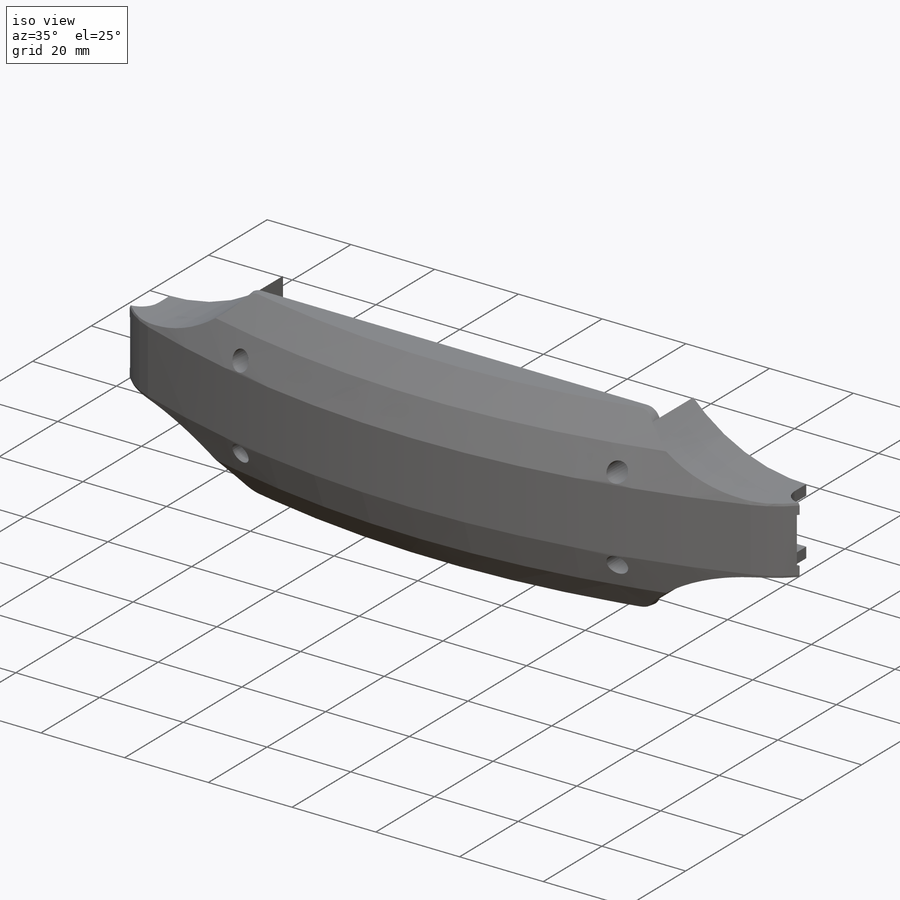
[diagram: iso view]
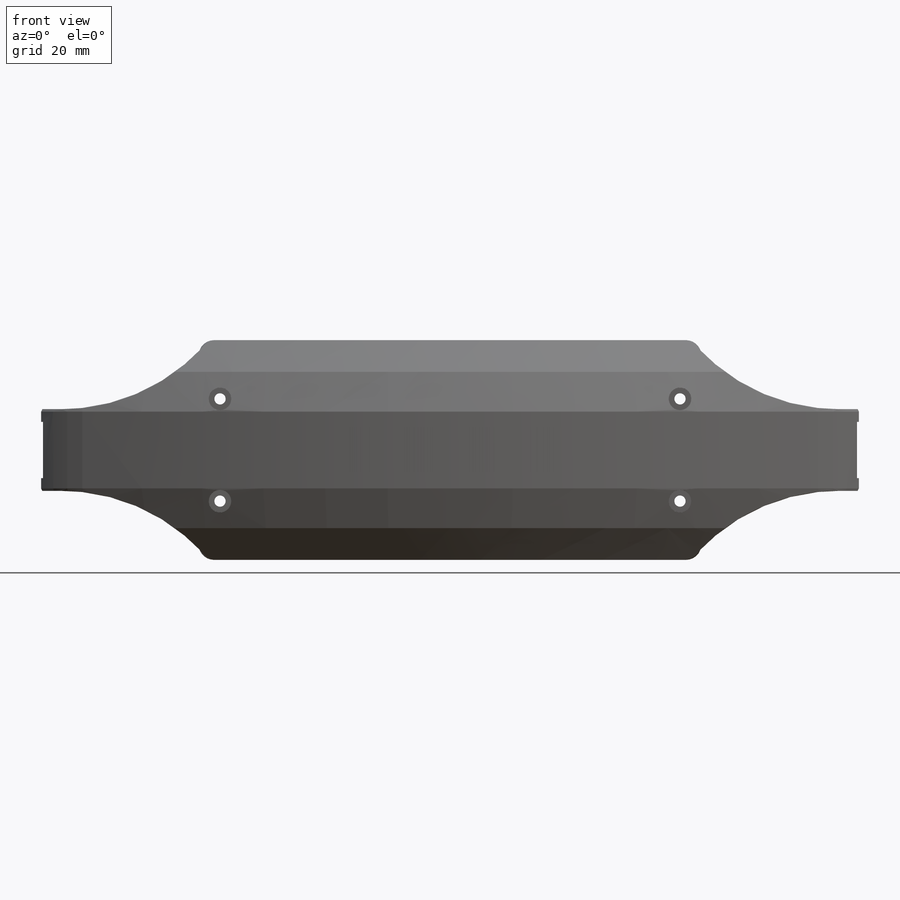
[diagram: front view]
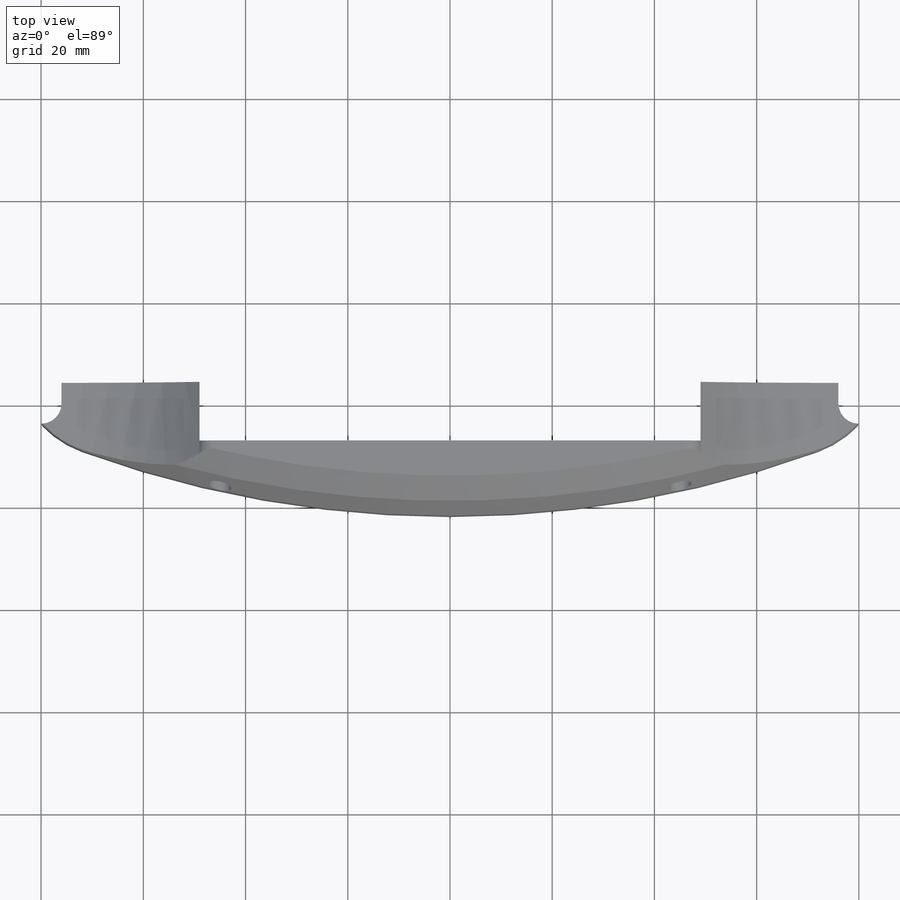
[diagram: top view]
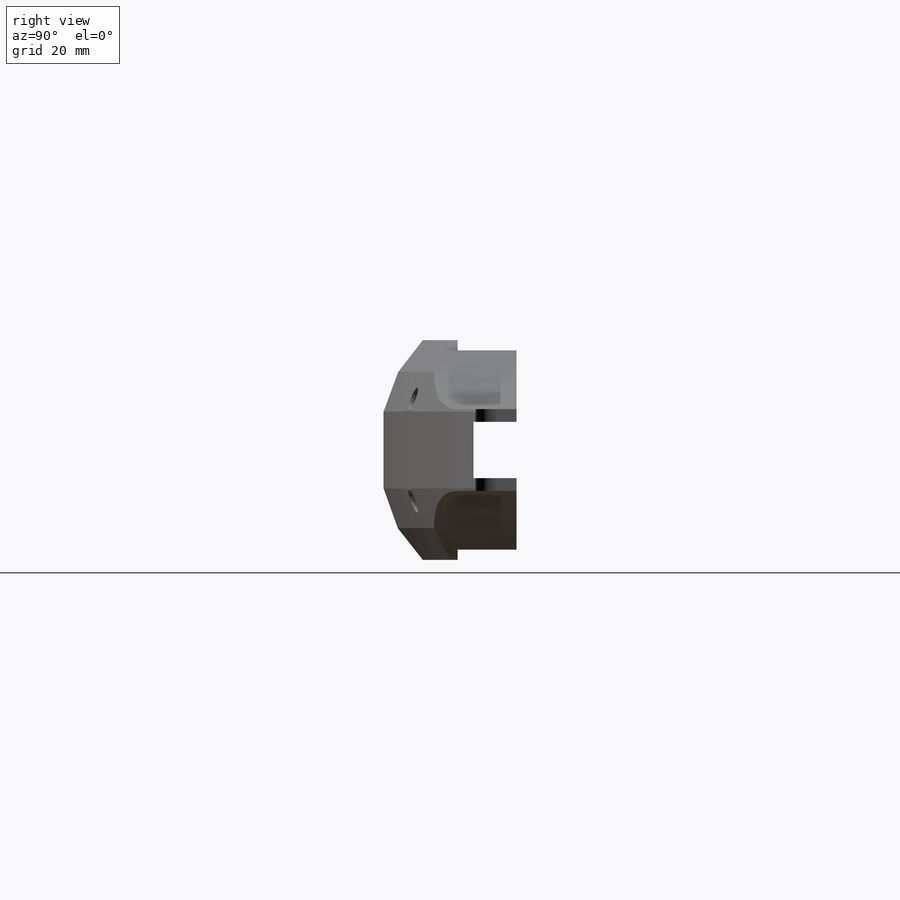
[diagram: right view]
SOLIDWORKS PART (.sldprt)
format: sldprt  version: not decoded by parser v0  size: 793,600 bytes
history: native  units: mm
features: sketch x11, plane x5, cut_extrude x4, mirror x2, material x1, extrude x1, sweep x1, chamfer x1, hole x1 (+9 scaffold rows collapsed)
feature tree (36):
  scaffold x9  (default folders/planes/origin — collapsed)
  material  "PVC hart"
  plane  "Ebene vorne"
  plane  "Ebene oben"
  plane  "Ebene rechts"
  sketch  "Skizze1"  dims[c1.D2=8.0mm c1.D7=~208.395046mm c1.D9=20.0mm c1.D1=160.0mm c1.D3=160.0mm c2.D3=20.0deg c2.D4=20.0mm c2.D5=98.0mm c2.D6=11.5mm c2.D7=2.0mm c2.D8=152.0mm c3.D7=2.0mm c3.D9=10.0mm c3.D10=82.0mm]
  extrude  "Aufsatz-Linear austragen1"  Depth=21.5mm
  cut_extrude  "Schnitt-Linear austragen1"  [1 undecoded]
  sketch  "Skizze1<4>"  dims[D1=5.5mm]
  cut_extrude  "Schnitt-Linear austragen3"  [1 undecoded]
  sketch  "Skizze1<5>"  dims[D1=14.0mm]
  sketch  "Skizze4"  dims[D1=20.0mm]
  sketch  "Skizze3"  dims[D1=5.0mm D2=7.5mm]
  sweep  "Schnitt-Austragung1"
  sketch  "Skizze2"  dims[c1.D4=3.0mm c1.D1=1.0mm c1.D2=10.0mm c2.D1=2.5mm c2.D3=10.0mm c2.D5=2.0mm c2.D4=2.0mm c3.D5=2.0mm c3.D4=2.0mm]
  cut_extrude  "Schnitt-Linear austragen2"  [1 undecoded]
  sketch  "3D-Skizze1"  dims[c1.D1=~2.871378mm c1.D2=3.0mm c2.D1=5.0mm]
  sketch  "Skizze6"  dims[D1=3.0mm D2=5.0mm]
  chamfer  "Fase2"  Distance=6.6mm
  plane  "Ebene1"
  hole  "Stirnsenkung für  M2 Zylinderschraube mit Schlitz/Kreuzschlitz1"  Diameter=2.2mm Depth=26.000025mm
  sketch  "Skizze12"  dims[D1=10.0mm D2=45.0mm]
  sketch  "Skizze13"  dims[hole-wizard template sketch: 41 standard entries collapsed; hole parameters kept: c12.Bohrerdurchmesser=2.2mm c12.Bohrungstiefe=~26.000025mm c12.Senkdurchmesser2=4.4mm c12.Senktiefe2=12.0mm]
  plane  "Ebene2"
  sketch  "Skizze17"  dims[D1=44.0mm D2=23.3mm]
  cut_extrude  "Schnitt-Linear austragen7"  Depth=8.5mm
  mirror  "Spiegeln1"
  mirror  "Spiegeln2"
decode coverage: 15 of 21 modeling features carry decoded parameters
note: ~ marks probable driven/reference dimensions
note: 3 parameter values undecoded
summary: no parameter record found for 3 features
note: suppression state not decoded; provenance and decode notes live in map.json
